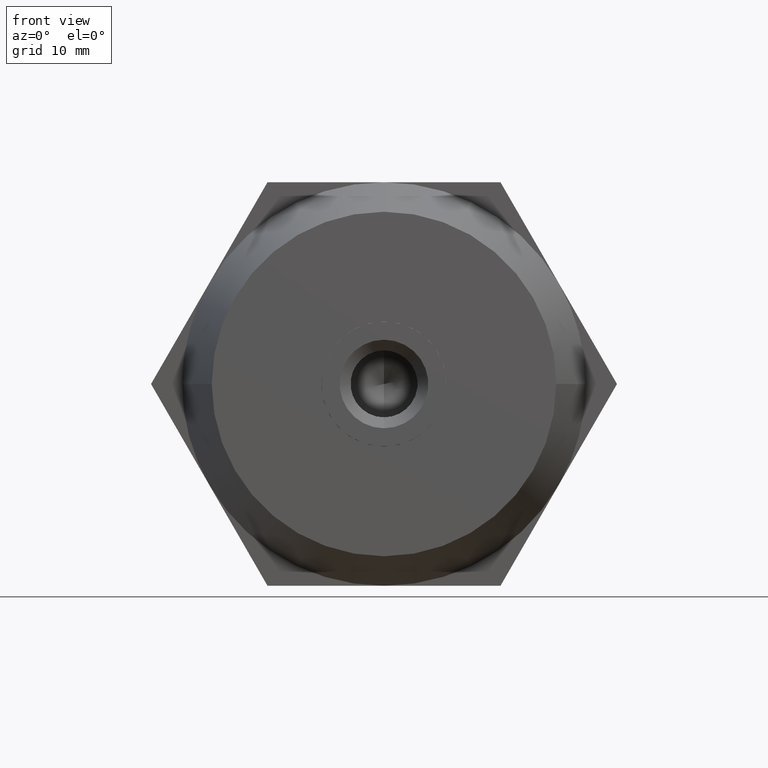
[diagram: clean part render]
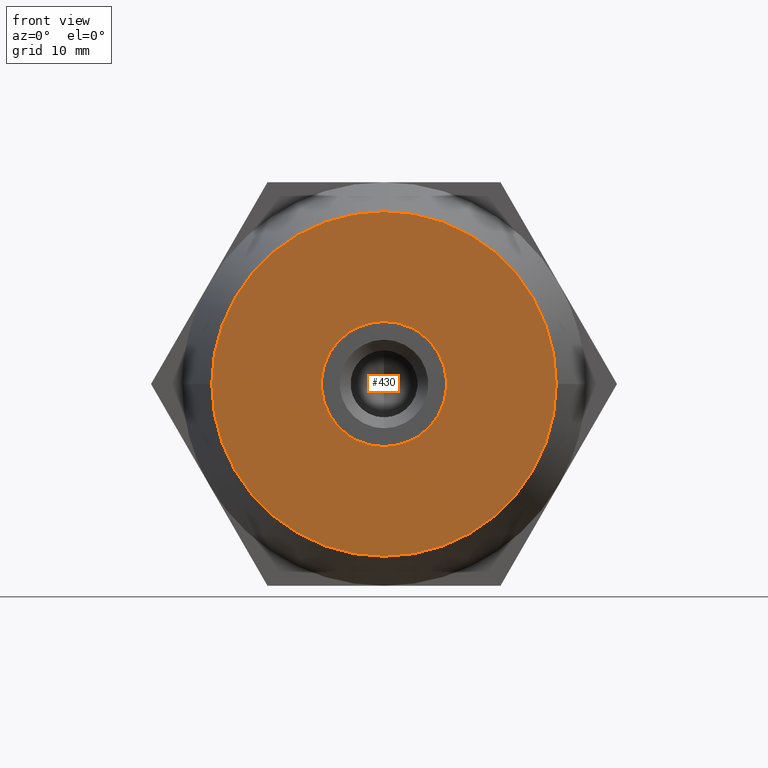
[diagram: same view with one face highlighted and labeled with its STEP entity id]
A machine part, front view. The second image highlights one B-rep face of the part: STEP entity #430.
In plain terms, the highlighted planar face has unit normal (0, -1, 0).
Its self-contained STEP definition (entity closure, byte-faithful):
#48 = DIRECTION ( 'NONE',  ( -1.000000000000000000, -1.982541115402065400E-016, 0.0000000000000000000 ) ) ;
#49 = ORIENTED_EDGE ( 'NONE', *, *, #760, .T. ) ;
#56 = DIRECTION ( 'NONE',  ( 1.000000000000000000, 0.0000000000000000000, 8.881784197001252300E-016 ) ) ;
#227 = CARTESIAN_POINT ( 'NONE',  ( 4.241909236732810000E-015, -20.00000000000000000, 0.0000000000000000000 ) ) ;
#242 = ORIENTED_EDGE ( 'NONE', *, *, #1070, .T. ) ;
#249 = VERTEX_POINT ( 'NONE', #3485 ) ;
#292 = AXIS2_PLACEMENT_3D ( 'NONE', #1548, #1272, #2773 ) ;
#303 = CARTESIAN_POINT ( 'NONE',  ( -3.483747469625280100, -20.00000000000000000, 5.321005879331409900 ) ) ;
#306 = VECTOR ( 'NONE', #1347, 1000.000000000000000 ) ;
#310 = CARTESIAN_POINT ( 'NONE',  ( -17.49999999999999600, -20.00000000000000400, 0.0000000000000000000 ) ) ;
#324 = ORIENTED_EDGE ( 'NONE', *, *, #1771, .F. ) ;
#337 = CARTESIAN_POINT ( 'NONE',  ( 4.241909236732810000E-015, -20.00000000000000000, 0.0000000000000000000 ) ) ;
#338 = VERTEX_POINT ( 'NONE', #2650 ) ;
#430 = ADVANCED_FACE ( 'NONE', ( #1491, #3552 ), #3318, .T. ) ;
#436 = CIRCLE ( 'NONE', #3268, 6.360000000000000300 ) ;
#466 = EDGE_CURVE ( 'NONE', #2085, #2460, #1758, .T. ) ;
#470 = CARTESIAN_POINT ( 'NONE',  ( 4.241909236732810000E-015, -20.00000000000000000, 0.0000000000000000000 ) ) ;
#483 = DIRECTION ( 'NONE',  ( -1.224646799147352000E-016, 1.000000000000000000, -0.0000000000000000000 ) ) ;
#503 = DIRECTION ( 'NONE',  ( -1.224646799147352000E-016, 1.000000000000000000, -0.0000000000000000000 ) ) ;
#559 = VERTEX_POINT ( 'NONE', #757 ) ;
#576 = DIRECTION ( 'NONE',  ( 0.8660254037844387100, 1.060575238724905700E-016, 0.4999999999999998900 ) ) ;
#589 = CIRCLE ( 'NONE', #2473, 17.50000000000000000 ) ;
#629 = VECTOR ( 'NONE', #2539, 1000.000000000000000 ) ;
#632 = ORIENTED_EDGE ( 'NONE', *, *, #3543, .T. ) ;
#635 = ORIENTED_EDGE ( 'NONE', *, *, #2983, .T. ) ;
#659 = DIRECTION ( 'NONE',  ( -1.000000000000000000, -1.982541115402065400E-016, 0.0000000000000000000 ) ) ;
#671 = AXIS2_PLACEMENT_3D ( 'NONE', #470, #503, #2792 ) ;
#680 = VERTEX_POINT ( 'NONE', #3263 ) ;
#745 = DIRECTION ( 'NONE',  ( -0.8660254037844387100, -1.060575238724905700E-016, 0.4999999999999998900 ) ) ;
#757 = CARTESIAN_POINT ( 'NONE',  ( 3.483747469625340100, -20.00000000000000000, -5.321005879331380600 ) ) ;
#760 = EDGE_CURVE ( 'NONE', #1280, #1147, #862, .T. ) ;
#862 = LINE ( 'NONE', #2941, #3279 ) ;
#877 = DIRECTION ( 'NONE',  ( -1.224646799147352000E-016, 1.000000000000000000, 0.0000000000000000000 ) ) ;
#892 = CIRCLE ( 'NONE', #1179, 6.360000000000000300 ) ;
#989 = CARTESIAN_POINT ( 'NONE',  ( 4.898587196589409900E-015, -20.00000000000000000, 0.0000000000000000000 ) ) ;
#1039 = DIRECTION ( 'NONE',  ( 0.8660254037844387100, 1.060575238724905700E-016, -0.4999999999999998900 ) ) ;
#1044 = EDGE_LOOP ( 'NONE', ( #3434, #324 ) ) ;
#1070 = EDGE_CURVE ( 'NONE', #559, #1922, #1123, .T. ) ;
#1078 = EDGE_CURVE ( 'NONE', #338, #1280, #1887, .T. ) ;
#1123 = LINE ( 'NONE', #3667, #629 ) ;
#1141 = CARTESIAN_POINT ( 'NONE',  ( 4.898587196589409900E-015, -20.00000000000000000, 0.0000000000000000000 ) ) ;
#1147 = VERTEX_POINT ( 'NONE', #3193 ) ;
#1153 = ORIENTED_EDGE ( 'NONE', *, *, #1078, .T. ) ;
#1162 = VECTOR ( 'NONE', #1039, 1000.000000000000000 ) ;
#1169 = VECTOR ( 'NONE', #745, 1000.000000000000000 ) ;
#1179 = AXIS2_PLACEMENT_3D ( 'NONE', #337, #2948, #56 ) ;
#1198 = CIRCLE ( 'NONE', #671, 6.360000000000000300 ) ;
#1217 = CARTESIAN_POINT ( 'NONE',  ( -3.483747469625239700, -20.00000000000000000, -5.321005879331440100 ) ) ;
#1244 = DIRECTION ( 'NONE',  ( -1.224646799147352000E-016, 1.000000000000000000, 0.0000000000000000000 ) ) ;
#1272 = DIRECTION ( 'NONE',  ( 1.224646799147352000E-016, -1.000000000000000000, 0.0000000000000000000 ) ) ;
#1280 = VERTEX_POINT ( 'NONE', #303 ) ;
#1332 = DIRECTION ( 'NONE',  ( 1.000000000000000000, 0.0000000000000000000, -1.776356839400250500E-015 ) ) ;
#1347 = DIRECTION ( 'NONE',  ( -2.365849761790805000E-016, -2.897330338040634900E-032, 1.000000000000000000 ) ) ;
#1491 = FACE_OUTER_BOUND ( 'NONE', #1044, .T. ) ;
#1516 = CARTESIAN_POINT ( 'NONE',  ( 2.866252530374670200, -20.00000000000000000, -5.677516748730980100 ) ) ;
#1548 = CARTESIAN_POINT ( 'NONE',  ( -17.50000000000000000, -20.00000000000000000, 0.0000000000000000000 ) ) ;
#1552 = VERTEX_POINT ( 'NONE', #3340 ) ;
#1653 = EDGE_CURVE ( 'NONE', #3064, #559, #1671, .T. ) ;
#1656 = CARTESIAN_POINT ( 'NONE',  ( 6.349999999999999600, -20.00000000000000000, 5.642551681871059600E-015 ) ) ;
#1671 = CIRCLE ( 'NONE', #3738, 6.360000000000000300 ) ;
#1698 = CARTESIAN_POINT ( 'NONE',  ( 4.241909236732810000E-015, -20.00000000000000000, 0.0000000000000000000 ) ) ;
#1709 = DIRECTION ( 'NONE',  ( -1.224646799147352000E-016, 1.000000000000000000, -0.0000000000000000000 ) ) ;
#1758 = LINE ( 'NONE', #3414, #1169 ) ;
#1771 = EDGE_CURVE ( 'NONE', #249, #1879, #589, .T. ) ;
#1879 = VERTEX_POINT ( 'NONE', #310 ) ;
#1887 = CIRCLE ( 'NONE', #3587, 6.360000000000000300 ) ;
#1922 = VERTEX_POINT ( 'NONE', #1516 ) ;
#1958 = DIRECTION ( 'NONE',  ( -1.224646799147352000E-016, 1.000000000000000000, -0.0000000000000000000 ) ) ;
#1979 = LINE ( 'NONE', #1656, #3308 ) ;
#2008 = ORIENTED_EDGE ( 'NONE', *, *, #3461, .T. ) ;
#2047 = CARTESIAN_POINT ( 'NONE',  ( 3.483747469625325000, -20.00000000000000000, 5.321005879331390400 ) ) ;
#2085 = VERTEX_POINT ( 'NONE', #2516 ) ;
#2100 = ORIENTED_EDGE ( 'NONE', *, *, #2872, .T. ) ;
#2181 = AXIS2_PLACEMENT_3D ( 'NONE', #989, #1244, #659 ) ;
#2220 = CARTESIAN_POINT ( 'NONE',  ( 4.241909236732810000E-015, -20.00000000000000000, 0.0000000000000000000 ) ) ;
#2222 = DIRECTION ( 'NONE',  ( 1.000000000000000000, 0.0000000000000000000, 0.0000000000000000000 ) ) ;
#2328 = EDGE_CURVE ( 'NONE', #3798, #3596, #3598, .T. ) ;
#2361 = ORIENTED_EDGE ( 'NONE', *, *, #1653, .T. ) ;
#2460 = VERTEX_POINT ( 'NONE', #1217 ) ;
#2463 = EDGE_LOOP ( 'NONE', ( #3175, #2681, #2591, #2361, #242, #632, #3337, #2100, #2008, #1153, #49, #635 ) ) ;
#2473 = AXIS2_PLACEMENT_3D ( 'NONE', #1141, #877, #48 ) ;
#2516 = CARTESIAN_POINT ( 'NONE',  ( -2.866252530374750100, -20.00000000000000000, -5.677516748730940100 ) ) ;
#2539 = DIRECTION ( 'NONE',  ( -0.8660254037844387100, -1.060575238724905700E-016, -0.4999999999999998900 ) ) ;
#2591 = ORIENTED_EDGE ( 'NONE', *, *, #2919, .T. ) ;
#2626 = AXIS2_PLACEMENT_3D ( 'NONE', #2220, #483, #3700 ) ;
#2648 = CARTESIAN_POINT ( 'NONE',  ( 6.349999999999999600, -20.00000000000000000, -0.3565108693996504300 ) ) ;
#2650 = CARTESIAN_POINT ( 'NONE',  ( -6.349999999999999600, -20.00000000000000000, 0.3565108693994699700 ) ) ;
#2681 = ORIENTED_EDGE ( 'NONE', *, *, #2818, .T. ) ;
#2773 = DIRECTION ( 'NONE',  ( 1.000000000000000000, 1.224646799147352000E-016, 0.0000000000000000000 ) ) ;
#2792 = DIRECTION ( 'NONE',  ( 1.000000000000000000, 0.0000000000000000000, 1.776356839400250500E-015 ) ) ;
#2809 = DIRECTION ( 'NONE',  ( -1.224646799147352000E-016, 1.000000000000000000, -0.0000000000000000000 ) ) ;
#2815 = CIRCLE ( 'NONE', #2181, 17.50000000000000000 ) ;
#2818 = EDGE_CURVE ( 'NONE', #3596, #1552, #1198, .T. ) ;
#2872 = EDGE_CURVE ( 'NONE', #2460, #680, #3459, .T. ) ;
#2919 = EDGE_CURVE ( 'NONE', #1552, #3064, #1979, .T. ) ;
#2941 = CARTESIAN_POINT ( 'NONE',  ( -16.29999999999999700, -20.00000000000000000, -2.078460969082654800 ) ) ;
#2944 = LINE ( 'NONE', #3111, #306 ) ;
#2948 = DIRECTION ( 'NONE',  ( -1.224646799147352000E-016, 1.000000000000000000, -0.0000000000000000000 ) ) ;
#2983 = EDGE_CURVE ( 'NONE', #1147, #3798, #436, .T. ) ;
#3064 = VERTEX_POINT ( 'NONE', #2648 ) ;
#3093 = CARTESIAN_POINT ( 'NONE',  ( 2.866252530374675100, -20.00000000000000000, 5.677516748730980100 ) ) ;
#3111 = CARTESIAN_POINT ( 'NONE',  ( -6.349999999999999600, -20.00000000000000000, 2.637922484396745100E-015 ) ) ;
#3113 = CARTESIAN_POINT ( 'NONE',  ( -9.950000000000001100, -20.00000000000000000, 13.07698359714502200 ) ) ;
#3141 = CARTESIAN_POINT ( 'NONE',  ( 4.241909236732810000E-015, -20.00000000000000000, 0.0000000000000000000 ) ) ;
#3175 = ORIENTED_EDGE ( 'NONE', *, *, #2328, .T. ) ;
#3193 = CARTESIAN_POINT ( 'NONE',  ( -2.866252530374715100, -20.00000000000000000, 5.677516748730960600 ) ) ;
#3199 = DIRECTION ( 'NONE',  ( 2.365849761790800100E-016, 2.897330338040634900E-032, -1.000000000000000000 ) ) ;
#3263 = CARTESIAN_POINT ( 'NONE',  ( -6.349999999999999600, -20.00000000000000000, -0.3565108693994729600 ) ) ;
#3268 = AXIS2_PLACEMENT_3D ( 'NONE', #1698, #1709, #3757 ) ;
#3279 = VECTOR ( 'NONE', #576, 1000.000000000000000 ) ;
#3308 = VECTOR ( 'NONE', #3199, 1000.000000000000000 ) ;
#3318 = PLANE ( 'NONE',  #292 ) ;
#3337 = ORIENTED_EDGE ( 'NONE', *, *, #466, .T. ) ;
#3340 = CARTESIAN_POINT ( 'NONE',  ( 6.349999999999999600, -20.00000000000000000, 0.3565108693996534800 ) ) ;
#3414 = CARTESIAN_POINT ( 'NONE',  ( -16.29999999999999700, -20.00000000000000000, 2.078460969082649900 ) ) ;
#3434 = ORIENTED_EDGE ( 'NONE', *, *, #3678, .F. ) ;
#3459 = CIRCLE ( 'NONE', #2626, 6.360000000000000300 ) ;
#3461 = EDGE_CURVE ( 'NONE', #680, #338, #2944, .T. ) ;
#3485 = CARTESIAN_POINT ( 'NONE',  ( 17.50000000000000400, -19.99999999999999600, 2.326828918379971800E-015 ) ) ;
#3543 = EDGE_CURVE ( 'NONE', #1922, #2085, #892, .T. ) ;
#3552 = FACE_BOUND ( 'NONE', #2463, .T. ) ;
#3587 = AXIS2_PLACEMENT_3D ( 'NONE', #3141, #1958, #1332 ) ;
#3596 = VERTEX_POINT ( 'NONE', #2047 ) ;
#3598 = LINE ( 'NONE', #3113, #1162 ) ;
#3667 = CARTESIAN_POINT ( 'NONE',  ( -9.950000000000001100, -20.00000000000000000, -13.07698359714502200 ) ) ;
#3678 = EDGE_CURVE ( 'NONE', #1879, #249, #2815, .T. ) ;
#3700 = DIRECTION ( 'NONE',  ( 1.000000000000000000, 0.0000000000000000000, -8.881784197001252300E-016 ) ) ;
#3738 = AXIS2_PLACEMENT_3D ( 'NONE', #227, #2809, #2222 ) ;
#3757 = DIRECTION ( 'NONE',  ( 1.000000000000000000, 0.0000000000000000000, 2.664535259100375300E-015 ) ) ;
#3798 = VERTEX_POINT ( 'NONE', #3093 ) ;